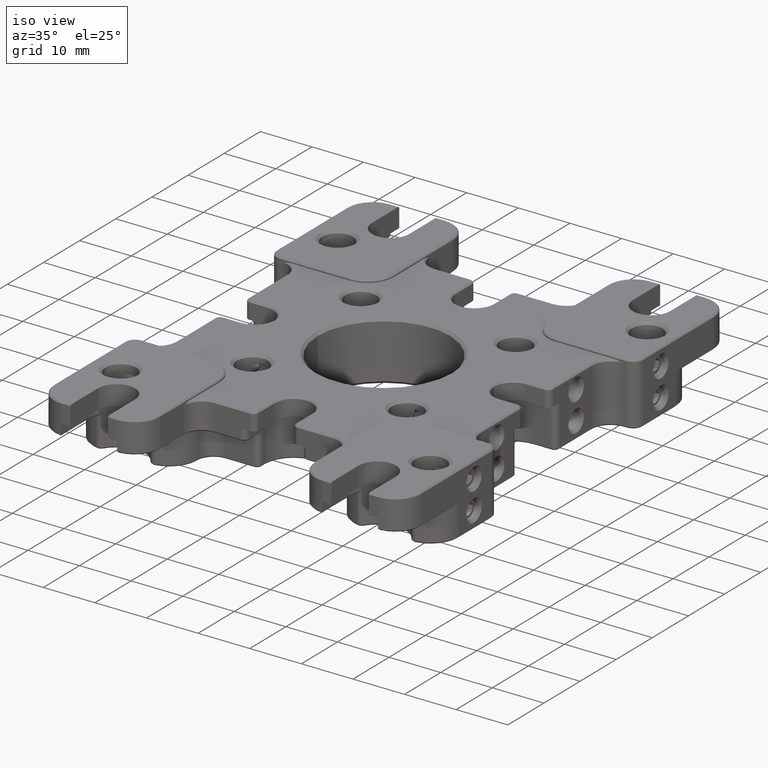
[diagram: clean part render]
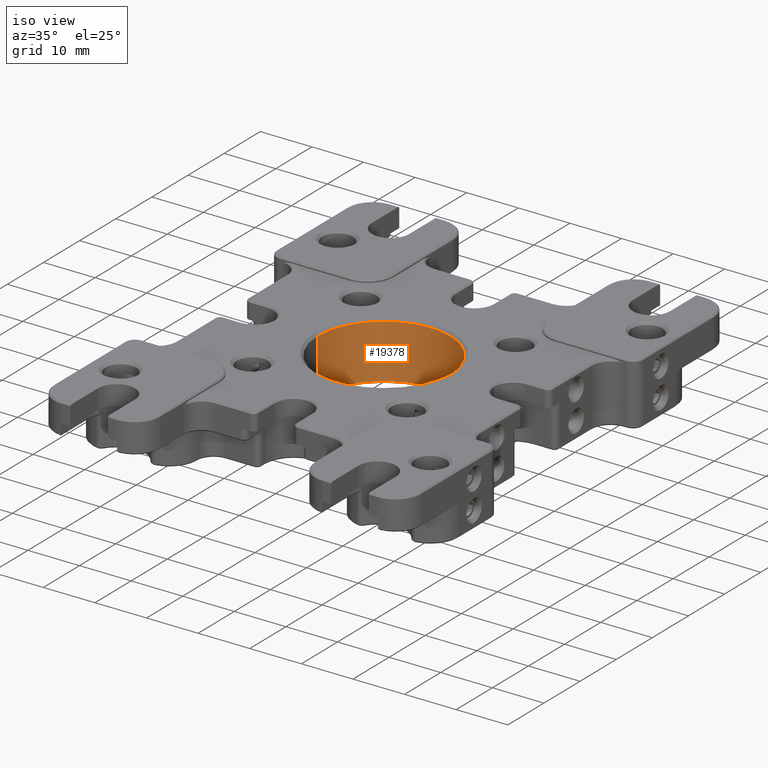
[diagram: same view with one face highlighted and labeled with its STEP entity id]
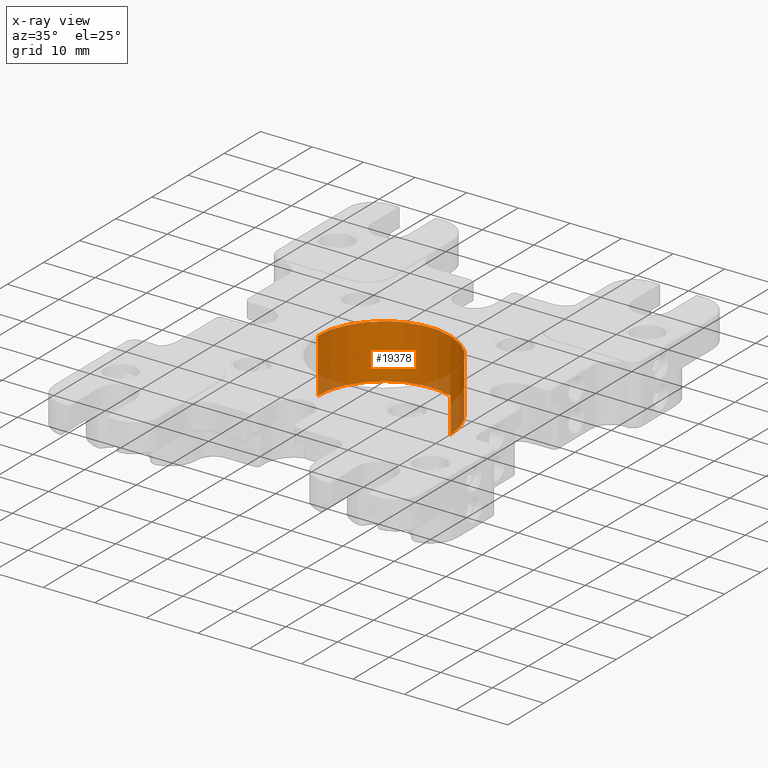
[diagram: x-ray of the same camera — body ghosted, the highlighted face saturated]
A machine part, iso view. The second image highlights one B-rep face of the part: STEP entity #19378.
The next image is the same camera in x-ray: the body ghosted, the highlighted face saturated — about 11% of this face is hidden behind the body in this view.
In plain terms, the highlighted cylindrical surface (partial cylindrical patch) has radius 12.827 mm, axis along (-0, -0, -1).
Its self-contained STEP definition (entity closure, byte-faithful):
#71 = ORIENTED_EDGE ( 'NONE', *, *, #7694, .T. ) ;
#1032 = DIRECTION ( 'NONE',  ( 1.000000000000000000, -7.507328075104216412E-33, -6.761999984317482409E-17 ) ) ;
#2638 = VERTEX_POINT ( 'NONE', #19462 ) ;
#2967 = DIRECTION ( 'NONE',  ( 5.551115123125782702E-17, 1.224646799147352468E-16, 1.000000000000000000 ) ) ;
#3053 = EDGE_CURVE ( 'NONE', #5928, #27294, #14569, .T. ) ;
#4692 = AXIS2_PLACEMENT_3D ( 'NONE', #16352, #2967, #1032 ) ;
#5773 = EDGE_LOOP ( 'NONE', ( #19682, #24426, #71, #26738 ) ) ;
#5928 = VERTEX_POINT ( 'NONE', #27730 ) ;
#6654 = EDGE_CURVE ( 'NONE', #5928, #16525, #27448, .T. ) ;
#7694 = EDGE_CURVE ( 'NONE', #16525, #2638, #23260, .T. ) ;
#8563 = CARTESIAN_POINT ( 'NONE',  ( 12.82699999999999818, 8.972987097352675907E-16, -5.499999999999990230 ) ) ;
#8788 = VECTOR ( 'NONE', #15653, 1000.000000000000000 ) ;
#8834 = CARTESIAN_POINT ( 'NONE',  ( -12.82700000000000173, 7.347880794884115792E-16, 6.000000000000000888 ) ) ;
#9323 = DIRECTION ( 'NONE',  ( -5.551115123125782702E-17, -1.224646799147352468E-16, -1.000000000000000000 ) ) ;
#11274 = DIRECTION ( 'NONE',  ( -5.551115123125782702E-17, -1.224646799147352468E-16, -1.000000000000000000 ) ) ;
#11682 = DIRECTION ( 'NONE',  ( -1.000000000000000000, 7.507328075104216412E-33, 6.761999984317482409E-17 ) ) ;
#13490 = CARTESIAN_POINT ( 'NONE',  ( 12.82700000000000173, 2.305642528754721597E-15, 5.999999999999999112 ) ) ;
#13874 = VECTOR ( 'NONE', #9323, 1000.000000000000000 ) ;
#13995 = AXIS2_PLACEMENT_3D ( 'NONE', #16089, #23033, #11682 ) ;
#14441 = CYLINDRICAL_SURFACE ( 'NONE', #19404, 12.82700000000000173 ) ;
#14569 = LINE ( 'NONE', #13490, #13874 ) ;
#15653 = DIRECTION ( 'NONE',  ( -5.551115123125782702E-17, -1.224646799147352468E-16, -1.000000000000000000 ) ) ;
#15768 = CARTESIAN_POINT ( 'NONE',  ( 3.330669073875469621E-16, 7.347880794884114806E-16, 6.000000000000000000 ) ) ;
#16089 = CARTESIAN_POINT ( 'NONE',  ( -3.053113317719174570E-16, -6.735557395310426246E-16, -5.499999999999989342 ) ) ;
#16352 = CARTESIAN_POINT ( 'NONE',  ( 2.775557561562895788E-16, 6.123233995736772199E-16, 5.000000000000007994 ) ) ;
#16525 = VERTEX_POINT ( 'NONE', #28679 ) ;
#17158 = CIRCLE ( 'NONE', #13995, 12.82700000000000173 ) ;
#19378 = ADVANCED_FACE ( 'NONE', ( #26682 ), #14441, .F. ) ;
#19404 = AXIS2_PLACEMENT_3D ( 'NONE', #15768, #11274, #24053 ) ;
#19462 = CARTESIAN_POINT ( 'NONE',  ( -12.82700000000000173, -6.735557395310425260E-16, -5.499999999999988454 ) ) ;
#19682 = ORIENTED_EDGE ( 'NONE', *, *, #3053, .F. ) ;
#23033 = DIRECTION ( 'NONE',  ( -5.551115123125782702E-17, -1.224646799147352468E-16, -1.000000000000000000 ) ) ;
#23260 = LINE ( 'NONE', #8834, #8788 ) ;
#24053 = DIRECTION ( 'NONE',  ( -1.000000000000000000, 7.507328075104216412E-33, 6.761999984317482409E-17 ) ) ;
#24426 = ORIENTED_EDGE ( 'NONE', *, *, #6654, .T. ) ;
#26682 = FACE_OUTER_BOUND ( 'NONE', #5773, .T. ) ;
#26738 = ORIENTED_EDGE ( 'NONE', *, *, #27485, .T. ) ;
#27294 = VERTEX_POINT ( 'NONE', #8563 ) ;
#27448 = CIRCLE ( 'NONE', #4692, 12.82700000000000173 ) ;
#27485 = EDGE_CURVE ( 'NONE', #2638, #27294, #17158, .T. ) ;
#27730 = CARTESIAN_POINT ( 'NONE',  ( 12.82699999999999818, 1.540238279287627119E-15, 5.000000000000007105 ) ) ;
#28679 = CARTESIAN_POINT ( 'NONE',  ( -12.82699999999999818, -3.061616997868232025E-17, 5.000000000000008882 ) ) ;